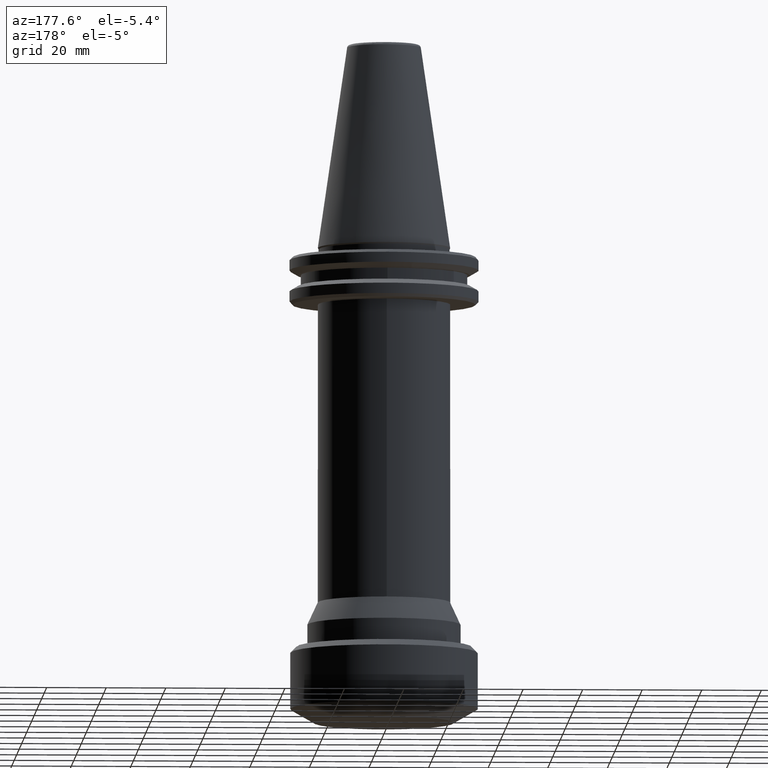
[diagram: clean part render]
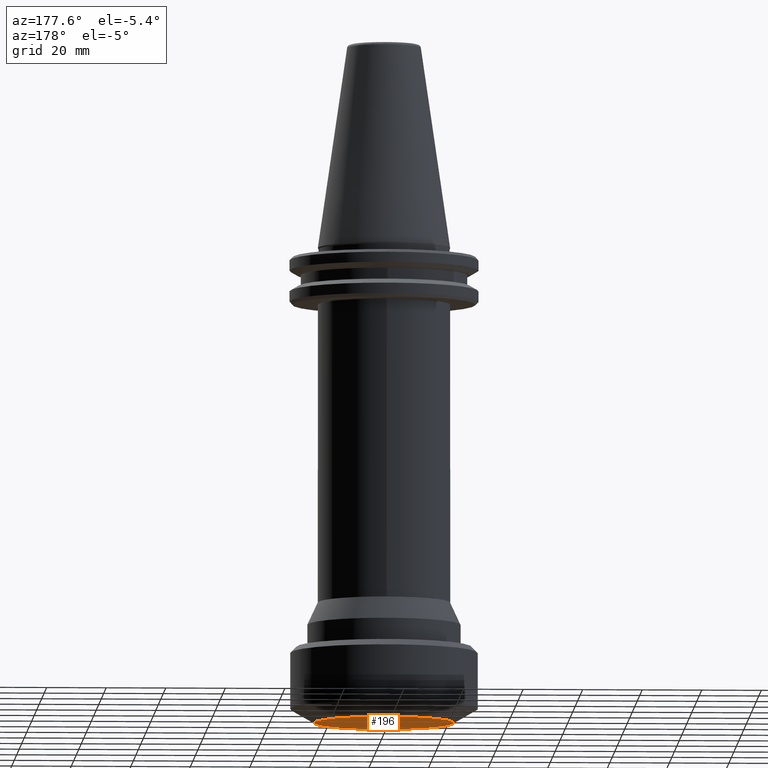
[diagram: same view with one face highlighted and labeled with its STEP entity id]
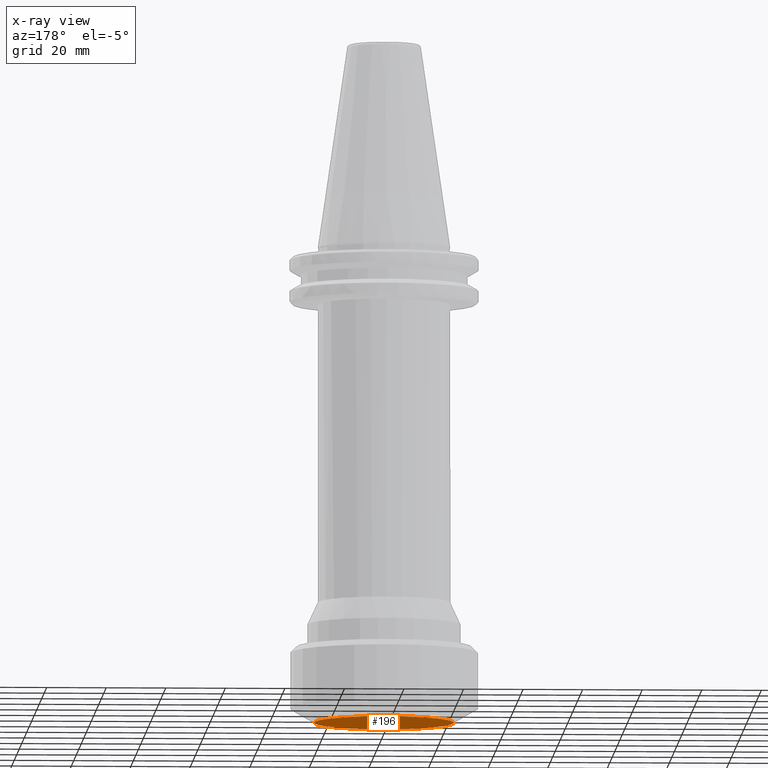
[diagram: x-ray of the same camera — body ghosted, the highlighted face saturated]
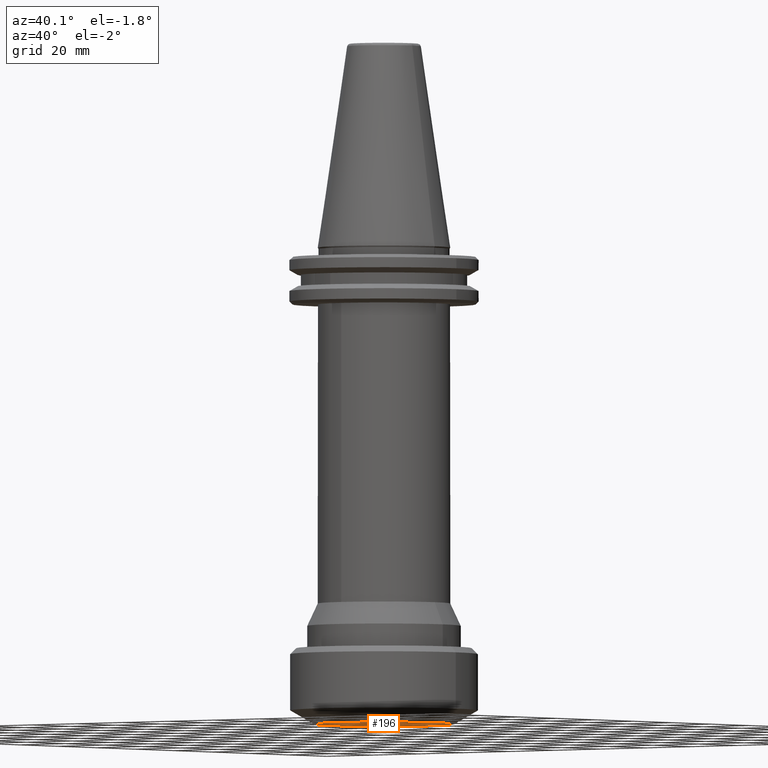
[diagram: same view with one face highlighted and labeled with its STEP entity id]
A machine part, auxiliary view. The second image highlights one B-rep face of the part: STEP entity #196.
The next image is the same camera in x-ray: the body ghosted, the highlighted face saturated — about 0% of this face is hidden behind the body in this view.
A second angle (auxiliary view) of the same face is appended — the face is thin or edge-on in the first view.
In plain terms, the highlighted planar face has unit normal (0, -0, 1).
Its self-contained STEP definition (entity closure, byte-faithful):
#15 = ORIENTED_EDGE ( 'NONE', *, *, #1150, .F. ) ;
#47 = DIRECTION ( 'NONE',  ( -0.0000000000000000000, -0.0000000000000000000, 1.000000000000000000 ) ) ;
#196 = ADVANCED_FACE ( 'NONE', ( #1440 ), #1270, .F. ) ;
#253 = AXIS2_PLACEMENT_3D ( 'NONE', #1474, #583, #1622 ) ;
#522 = CARTESIAN_POINT ( 'NONE',  ( 0.0000000000000000000, 0.0000000000000000000, -159.9999999996378200 ) ) ;
#540 = CIRCLE ( 'NONE', #253, 23.49999999979075900 ) ;
#583 = DIRECTION ( 'NONE',  ( -0.0000000000000000000, -0.0000000000000000000, 1.000000000000000000 ) ) ;
#601 = VERTEX_POINT ( 'NONE', #1026 ) ;
#670 = DIRECTION ( 'NONE',  ( 1.000000000000000000, 0.0000000000000000000, 0.0000000000000000000 ) ) ;
#815 = VERTEX_POINT ( 'NONE', #945 ) ;
#835 = ORIENTED_EDGE ( 'NONE', *, *, #1844, .F. ) ;
#945 = CARTESIAN_POINT ( 'NONE',  ( 23.49999999979075900, 0.0000000000000000000, -159.9999999996378200 ) ) ;
#946 = CARTESIAN_POINT ( 'NONE',  ( 0.0000000000000000000, 0.0000000000000000000, -159.9999999996378200 ) ) ;
#1026 = CARTESIAN_POINT ( 'NONE',  ( -23.49999999979075900, 3.367778697642408600E-015, -159.9999999996378200 ) ) ;
#1094 = DIRECTION ( 'NONE',  ( 1.000000000000000000, 0.0000000000000000000, 0.0000000000000000000 ) ) ;
#1150 = EDGE_CURVE ( 'NONE', #815, #601, #540, .T. ) ;
#1206 = EDGE_LOOP ( 'NONE', ( #15, #835 ) ) ;
#1270 = PLANE ( 'NONE',  #1362 ) ;
#1362 = AXIS2_PLACEMENT_3D ( 'NONE', #522, #1562, #670 ) ;
#1440 = FACE_OUTER_BOUND ( 'NONE', #1206, .T. ) ;
#1474 = CARTESIAN_POINT ( 'NONE',  ( 0.0000000000000000000, 0.0000000000000000000, -159.9999999996378200 ) ) ;
#1562 = DIRECTION ( 'NONE',  ( 0.0000000000000000000, -0.0000000000000000000, 1.000000000000000000 ) ) ;
#1622 = DIRECTION ( 'NONE',  ( 1.000000000000000000, 0.0000000000000000000, 0.0000000000000000000 ) ) ;
#1844 = EDGE_CURVE ( 'NONE', #601, #815, #1927, .T. ) ;
#1868 = AXIS2_PLACEMENT_3D ( 'NONE', #946, #47, #1094 ) ;
#1927 = CIRCLE ( 'NONE', #1868, 23.49999999979075900 ) ;